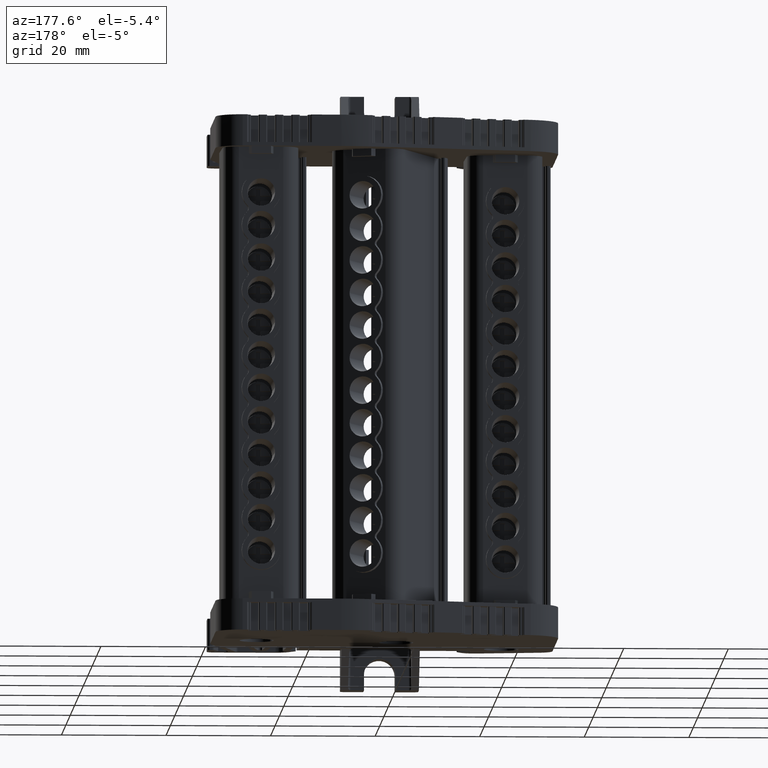
[diagram: clean part render]
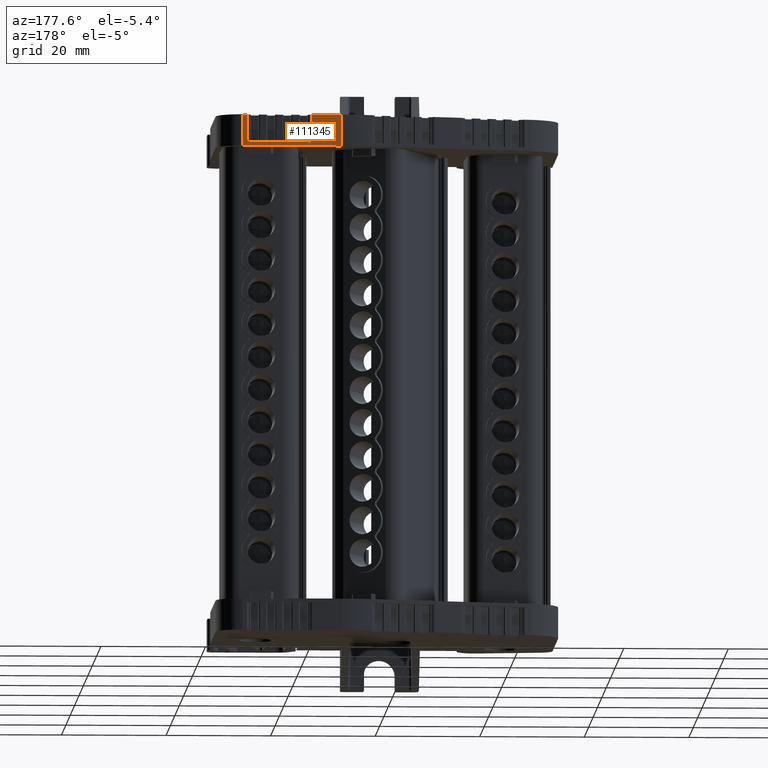
[diagram: same view with one face highlighted and labeled with its STEP entity id]
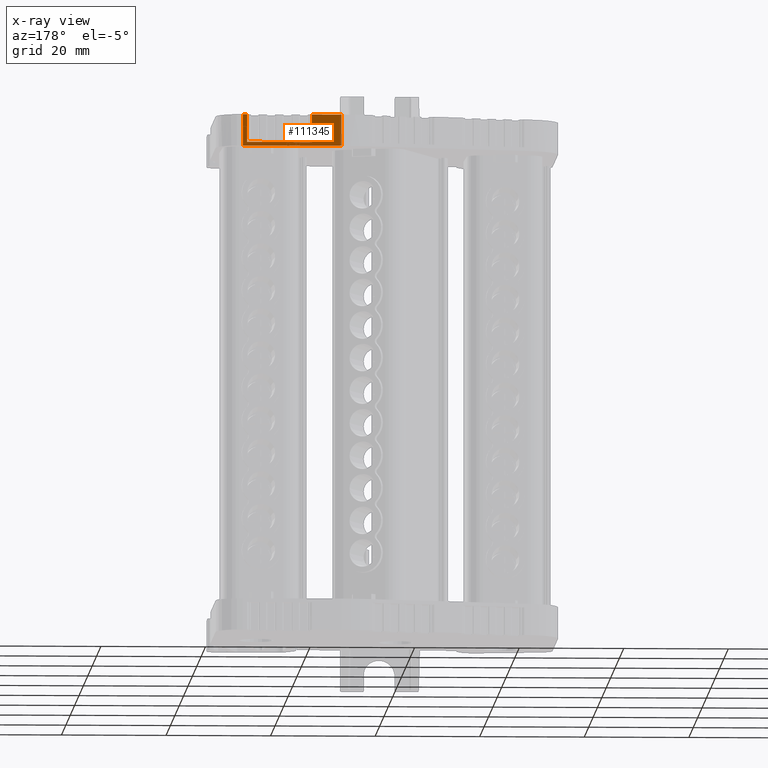
[diagram: x-ray of the same camera — body ghosted, the highlighted face saturated]
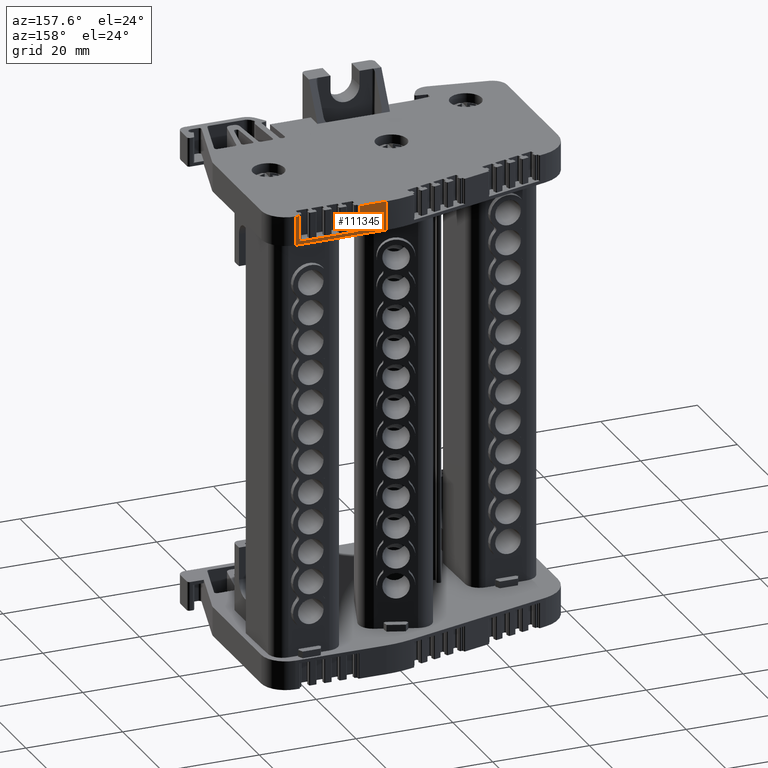
[diagram: same view with one face highlighted and labeled with its STEP entity id]
A machine part, auxiliary view. The second image highlights one B-rep face of the part: STEP entity #111345.
The next image is the same camera in x-ray: the body ghosted, the highlighted face saturated — about 0% of this face is hidden behind the body in this view.
A second angle (auxiliary view) of the same face is appended — the face is thin or edge-on in the first view.
In plain terms, the highlighted planar face has unit normal (-0, 1, -0).
Its self-contained STEP definition (entity closure, byte-faithful):
#6149 = LINE ( 'NONE', #6167, #29153 ) ;
#6150 = DIRECTION ( 'NONE',  ( 0.0000000000000000000, 6.891400851611630800E-015, 1.000000000000000000 ) ) ;
#6153 = LINE ( 'NONE', #6174, #29134 ) ;
#6167 = CARTESIAN_POINT ( 'NONE',  ( -288.7682779132333100, 234.0724463838862400, 187.3439306799941700 ) ) ;
#6174 = CARTESIAN_POINT ( 'NONE',  ( -269.9007457128343500, 234.0724463838862400, 187.3439306799941700 ) ) ;
#6175 = DIRECTION ( 'NONE',  ( -0.0000000000000000000, -6.891400851611630800E-015, -1.000000000000000000 ) ) ;
#6348 = CARTESIAN_POINT ( 'NONE',  ( -269.9007457128343500, 234.0724463838856500, 100.3119239351453900 ) ) ;
#6367 = DIRECTION ( 'NONE',  ( -1.000000000000000000, -2.533314238769239900E-029, 1.745808390245420800E-043 ) ) ;
#6378 = LINE ( 'NONE', #6348, #29242 ) ;
#9019 = VECTOR ( 'NONE', #12525, 1000.000000000000000 ) ;
#9150 = VECTOR ( 'NONE', #13208, 1000.000000000000000 ) ;
#9196 = VECTOR ( 'NONE', #13036, 1000.000000000000000 ) ;
#12487 = LINE ( 'NONE', #12531, #9019 ) ;
#12525 = DIRECTION ( 'NONE',  ( -0.0000000000000000000, -6.891400851611630800E-015, -1.000000000000000000 ) ) ;
#12531 = CARTESIAN_POINT ( 'NONE',  ( -283.1360552067976100, 234.0724463838862400, 187.3439306799941700 ) ) ;
#12855 = LINE ( 'NONE', #12926, #9196 ) ;
#12926 = CARTESIAN_POINT ( 'NONE',  ( -269.9007457128343500, 234.0724463838856800, 101.0119828081443700 ) ) ;
#13036 = DIRECTION ( 'NONE',  ( 1.000000000000000000, 2.533314238769239900E-029, -1.745808390245420800E-043 ) ) ;
#13106 = LINE ( 'NONE', #13125, #9150 ) ;
#13125 = CARTESIAN_POINT ( 'NONE',  ( -270.6995224828460800, 234.0724463838862400, 187.3439306799941700 ) ) ;
#13208 = DIRECTION ( 'NONE',  ( 0.0000000000000000000, 6.891400851611630800E-015, 1.000000000000000000 ) ) ;
#13596 = CARTESIAN_POINT ( 'NONE',  ( -270.4332635595088200, 234.0724463838856800, 106.3124285608489600 ) ) ;
#13616 = CARTESIAN_POINT ( 'NONE',  ( -286.8908703444213900, 234.0724463838856800, 106.3124285608489600 ) ) ;
#13638 = CARTESIAN_POINT ( 'NONE',  ( -269.9007457128343500, 234.0724463838856800, 106.3124285608489600 ) ) ;
#13644 = CARTESIAN_POINT ( 'NONE',  ( -285.0134627756095300, 234.0724463838856800, 106.3124285608489600 ) ) ;
#13652 = CARTESIAN_POINT ( 'NONE',  ( -283.1360552067976100, 234.0724463838857300, 106.3124285608489600 ) ) ;
#13666 = CARTESIAN_POINT ( 'NONE',  ( -288.7682779132330800, 234.0724463838856800, 106.3124285608489600 ) ) ;
#13682 = CARTESIAN_POINT ( 'NONE',  ( -270.1670046361716100, 234.0724463838856800, 106.3124285608489600 ) ) ;
#13686 = CARTESIAN_POINT ( 'NONE',  ( -270.6995224828460800, 234.0724463838857300, 106.3124285608489600 ) ) ;
#13941 = CARTESIAN_POINT ( 'NONE',  ( -269.9007457128345200, 234.0724463838856500, 100.3119239351454000 ) ) ;
#13942 = CARTESIAN_POINT ( 'NONE',  ( -288.7682779132332500, 234.0724463838856500, 100.3119239351454300 ) ) ;
#29134 = VECTOR ( 'NONE', #6175, 1000.000000000000000 ) ;
#29153 = VECTOR ( 'NONE', #6150, 1000.000000000000000 ) ;
#29242 = VECTOR ( 'NONE', #6367, 1000.000000000000000 ) ;
#39411 = AXIS2_PLACEMENT_3D ( 'NONE', #41278, #41276, #41246 ) ;
#41246 = DIRECTION ( 'NONE',  ( 0.0000000000000000000, 6.891400851611630800E-015, 1.000000000000000000 ) ) ;
#41258 = PLANE ( 'NONE',  #39411 ) ;
#41276 = DIRECTION ( 'NONE',  ( -2.533314238769239900E-029, 1.000000000000000000, -6.891400851611630800E-015 ) ) ;
#41278 = CARTESIAN_POINT ( 'NONE',  ( -269.9007457128343500, 234.0724463838862400, 187.3439306799941700 ) ) ;
#41285 = FACE_OUTER_BOUND ( 'NONE', #55349, .T. ) ;
#46693 = CARTESIAN_POINT ( 'NONE',  ( -283.1360552067976100, 234.0724463838857000, 101.0119828081443700 ) ) ;
#46700 = CARTESIAN_POINT ( 'NONE',  ( -269.9007457128343500, 234.0724463838856800, 106.3124285608489600 ) ) ;
#46799 = CARTESIAN_POINT ( 'NONE',  ( -270.6995224828460800, 234.0724463838857000, 101.0119828081443700 ) ) ;
#46805 = CARTESIAN_POINT ( 'NONE',  ( -283.1360552067976100, 234.0724463838857300, 106.3124285608489600 ) ) ;
#46813 = CARTESIAN_POINT ( 'NONE',  ( -288.7682779132330800, 234.0724463838856800, 106.3124285608489600 ) ) ;
#46846 = CARTESIAN_POINT ( 'NONE',  ( -270.6995224828460800, 234.0724463838857300, 106.3124285608489600 ) ) ;
#55349 = EDGE_LOOP ( 'NONE', ( #101398, #101413, #101401, #101393, #101404, #101421, #101437, #101429 ) ) ;
#70386 = VERTEX_POINT ( 'NONE', #13942 ) ;
#70510 = VERTEX_POINT ( 'NONE', #13941 ) ;
#76191 = EDGE_CURVE ( 'NONE', #116112, #116093, #12487, .T. ) ;
#76299 = EDGE_CURVE ( 'NONE', #116093, #116144, #12855, .T. ) ;
#76332 = EDGE_CURVE ( 'NONE', #116144, #116222, #13106, .T. ) ;
#76428 = EDGE_CURVE ( 'NONE', #116222, #116108, #119816, .T. ) ;
#76440 = EDGE_CURVE ( 'NONE', #116206, #116112, #119768, .T. ) ;
#84552 = EDGE_CURVE ( 'NONE', #70386, #116206, #6149, .T. ) ;
#84558 = EDGE_CURVE ( 'NONE', #116108, #70510, #6153, .T. ) ;
#84605 = EDGE_CURVE ( 'NONE', #70510, #70386, #6378, .T. ) ;
#101393 = ORIENTED_EDGE ( 'NONE', *, *, #76440, .T. ) ;
#101398 = ORIENTED_EDGE ( 'NONE', *, *, #84558, .T. ) ;
#101401 = ORIENTED_EDGE ( 'NONE', *, *, #84552, .T. ) ;
#101404 = ORIENTED_EDGE ( 'NONE', *, *, #76191, .T. ) ;
#101413 = ORIENTED_EDGE ( 'NONE', *, *, #84605, .T. ) ;
#101421 = ORIENTED_EDGE ( 'NONE', *, *, #76299, .T. ) ;
#101429 = ORIENTED_EDGE ( 'NONE', *, *, #76428, .T. ) ;
#101437 = ORIENTED_EDGE ( 'NONE', *, *, #76332, .T. ) ;
#111345 = ADVANCED_FACE ( 'NONE', ( #41285 ), #41258, .T. ) ;
#116093 = VERTEX_POINT ( 'NONE', #46693 ) ;
#116108 = VERTEX_POINT ( 'NONE', #46700 ) ;
#116112 = VERTEX_POINT ( 'NONE', #46805 ) ;
#116144 = VERTEX_POINT ( 'NONE', #46799 ) ;
#116206 = VERTEX_POINT ( 'NONE', #46813 ) ;
#116222 = VERTEX_POINT ( 'NONE', #46846 ) ;
#119768 = B_SPLINE_CURVE_WITH_KNOTS ( 'NONE', 3,
 ( #13666, #13616, #13644, #13652 ),
 .UNSPECIFIED., .F., .F.,
 ( 4, 4 ),
 ( 0.0000000000000000000, 1.000000000000000000 ),
 .UNSPECIFIED. ) ;
#119816 = B_SPLINE_CURVE_WITH_KNOTS ( 'NONE', 3,
 ( #13686, #13596, #13682, #13638 ),
 .UNSPECIFIED., .F., .F.,
 ( 4, 4 ),
 ( 0.0000000000000000000, 1.000000000000000000 ),
 .UNSPECIFIED. ) ;